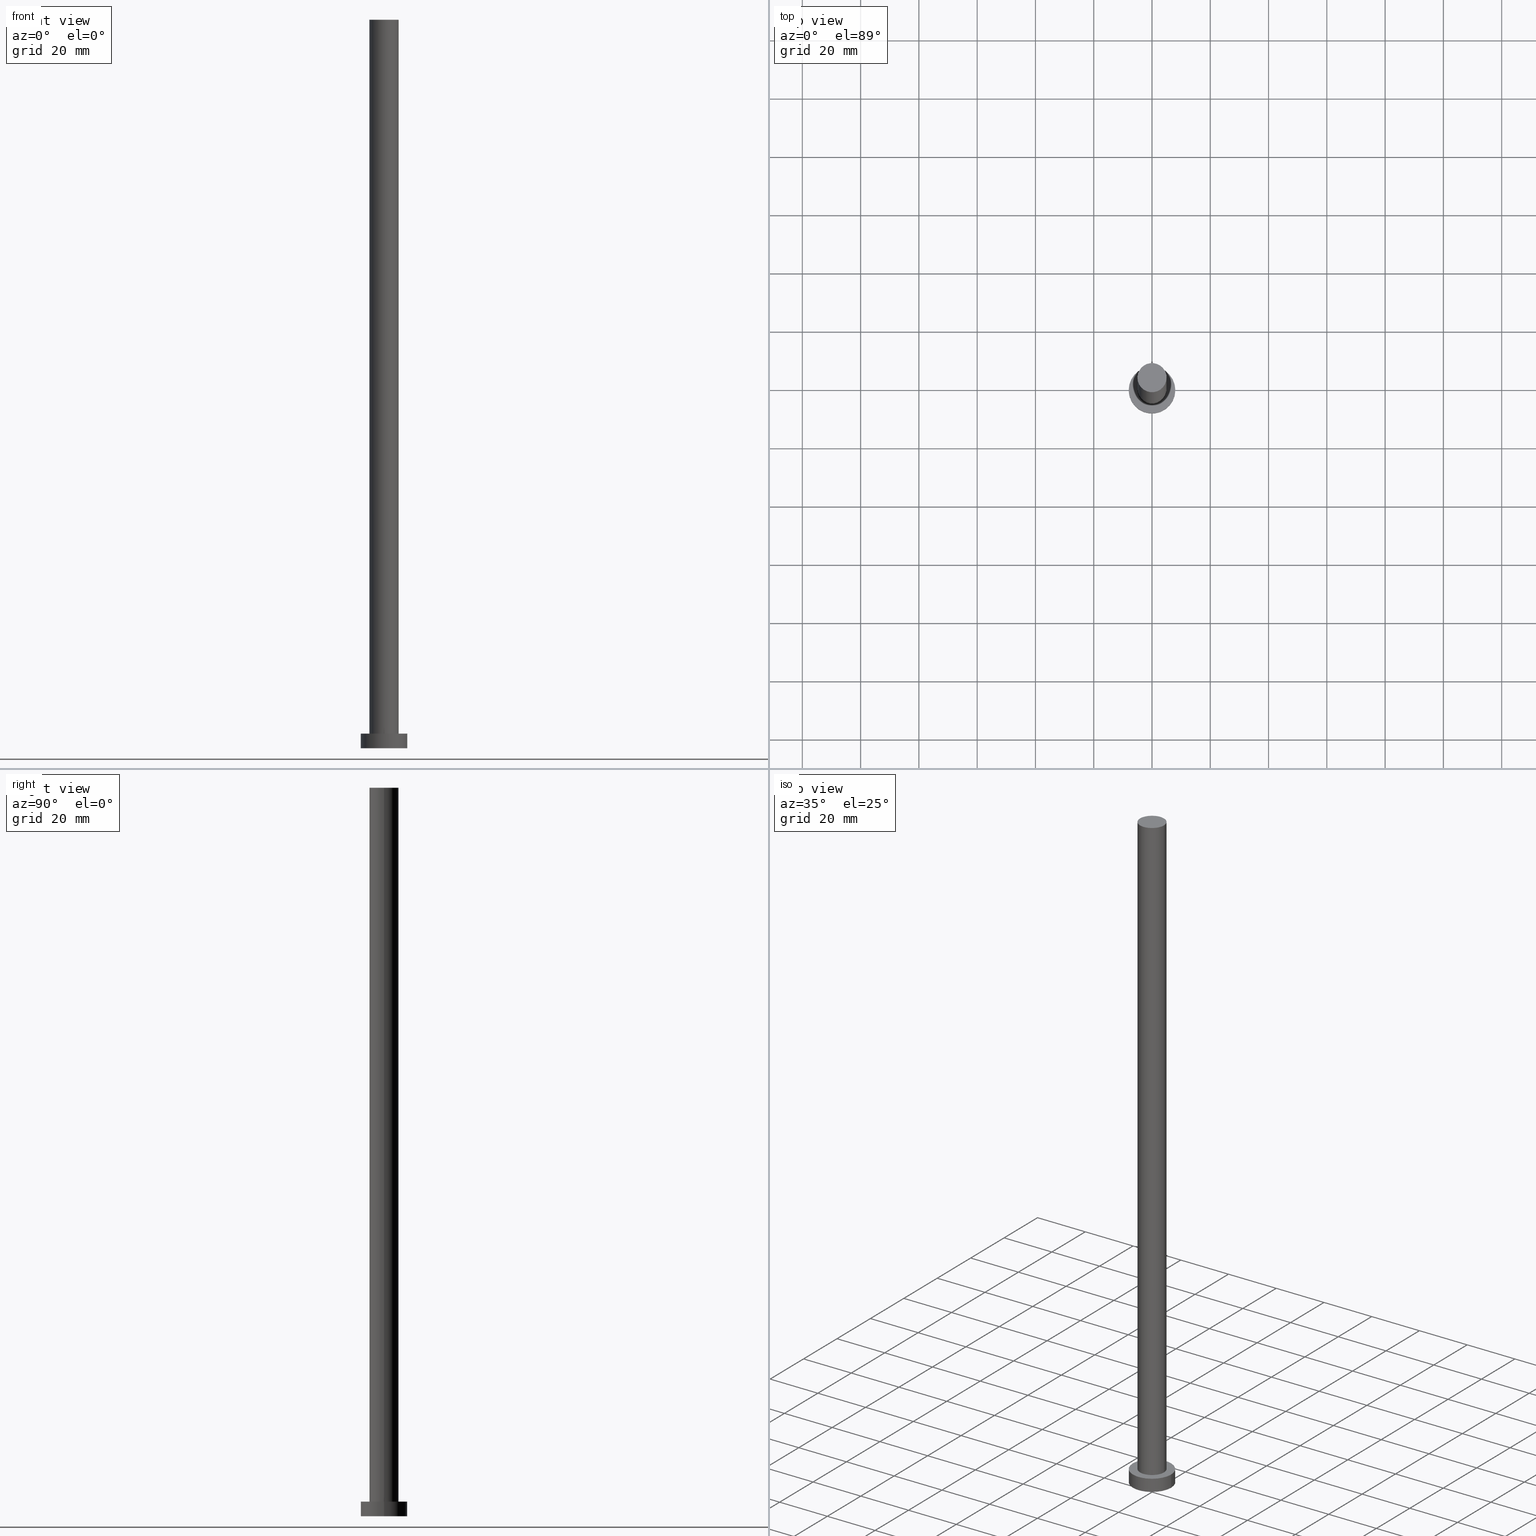
[diagram: canonical four-view strip — front | top / right | iso, engineering-drawing reading convention]
A machine part, canonical four-view strip (front | top / right | iso — engineering-drawing reading convention). The complete STEP part file that produces these views, byte-faithful:
ISO-10303-21;
HEADER;
FILE_DESCRIPTION (( 'STEP AP203' ),
    '1' );
FILE_NAME ('7c0f.STEP',
    '2023-02-12T11:00:39',
    ( '' ),
    ( '' ),
    'SwSTEP 2.0',
    'SolidWorks 2019',
    '' );
FILE_SCHEMA (( 'CONFIG_CONTROL_DESIGN' ));
ENDSEC;

DATA;
#1 = APPROVAL ( #199, 'NEUR�EN�' ) ;
#2 = CARTESIAN_POINT ( 'NONE',  ( 0.000000000000000000, 0.000000000000000000, 250.0000000000000000 ) ) ;
#3 = APPROVAL_PERSON_ORGANIZATION ( #217, #147, #54 ) ;
#4 = ORIENTED_EDGE ( 'NONE', *, *, #96, .T. ) ;
#5 = ORIENTED_EDGE ( 'NONE', *, *, #20, .F. ) ;
#6 = ADVANCED_FACE ( 'NONE', ( #210 ), #108, .T. ) ;
#7 = PLANE ( 'NONE',  #29 ) ;
#8 = DIRECTION ( 'NONE',  ( -0.000000000000000000, -0.000000000000000000, -1.000000000000000000 ) ) ;
#9 = CYLINDRICAL_SURFACE ( 'NONE', #103, 8.000000000000000000 ) ;
#10 = DIRECTION ( 'NONE',  ( -0.000000000000000000, -0.000000000000000000, -1.000000000000000000 ) ) ;
#11 = CC_DESIGN_PERSON_AND_ORGANIZATION_ASSIGNMENT ( #99, #55, ( #80 ) ) ;
#12 = CARTESIAN_POINT ( 'NONE',  ( 8.000000000000000000, 9.797174393178825657E-16, 0.000000000000000000 ) ) ;
#13 = DIRECTION ( 'NONE',  ( 0.000000000000000000, 0.000000000000000000, 1.000000000000000000 ) ) ;
#14 = CARTESIAN_POINT ( 'NONE',  ( 0.000000000000000000, 0.000000000000000000, 250.0000000000000000 ) ) ;
#15 = COORDINATED_UNIVERSAL_TIME_OFFSET ( 1, 0, .AHEAD. ) ;
#16 = LOCAL_TIME ( 12, 0, 39.00000000000000000, #137 ) ;
#17 = DATE_AND_TIME ( #237, #138 ) ;
#18 = PRODUCT_DEFINITION ( 'NEZN�M�', '', #98, #124 ) ;
#19 = PERSON_AND_ORGANIZATION ( #160, #252 ) ;
#20 = EDGE_CURVE ( 'NONE', #126, #223, #79, .T. ) ;
#21 = VERTEX_POINT ( 'NONE', #106 ) ;
#22 = EDGE_LOOP ( 'NONE', ( #224, #41, #4, #226 ) ) ;
#23 = CC_DESIGN_PERSON_AND_ORGANIZATION_ASSIGNMENT ( #74, #181, ( #98 ) ) ;
#24 = ADVANCED_BREP_SHAPE_REPRESENTATION ( '7c0f', ( #125, #220 ), #86 ) ;
#25 = EDGE_LOOP ( 'NONE', ( #168, #107, #43, #242 ) ) ;
#26 = FACE_OUTER_BOUND ( 'NONE', #25, .T. ) ;
#27 = ORIENTED_EDGE ( 'NONE', *, *, #205, .F. ) ;
#28 = CARTESIAN_POINT ( 'NONE',  ( 0.000000000000000000, 0.000000000000000000, 5.000000000000000000 ) ) ;
#29 = AXIS2_PLACEMENT_3D ( 'NONE', #183, #208, #171 ) ;
#30 = FACE_OUTER_BOUND ( 'NONE', #151, .T. ) ;
#31 = CARTESIAN_POINT ( 'NONE',  ( 0.000000000000000000, 0.000000000000000000, 0.000000000000000000 ) ) ;
#32 = VECTOR ( 'NONE', #152, 1000.000000000000000 ) ;
#33 = EDGE_CURVE ( 'NONE', #128, #126, #132, .T. ) ;
#34 = CARTESIAN_POINT ( 'NONE',  ( -5.000000000000000000, 0.000000000000000000, 5.000000000000000000 ) ) ;
#35 = CARTESIAN_POINT ( 'NONE',  ( 0.000000000000000000, 0.000000000000000000, 250.0000000000000000 ) ) ;
#36 = AXIS2_PLACEMENT_3D ( 'NONE', #35, #13, #191 ) ;
#37 = DATE_AND_TIME ( #100, #117 ) ;
#38 = APPROVAL_DATE_TIME ( #203, #147 ) ;
#39 = COORDINATED_UNIVERSAL_TIME_OFFSET ( 1, 0, .AHEAD. ) ;
#40 = CARTESIAN_POINT ( 'NONE',  ( 8.000000000000000000, 9.797174393178825657E-16, 5.000000000000000000 ) ) ;
#41 = ORIENTED_EDGE ( 'NONE', *, *, #20, .T. ) ;
#42 = CC_DESIGN_PERSON_AND_ORGANIZATION_ASSIGNMENT ( #159, #196, ( #18 ) ) ;
#43 = ORIENTED_EDGE ( 'NONE', *, *, #205, .T. ) ;
#44 = EDGE_LOOP ( 'NONE', ( #5, #241, #244, #169 ) ) ;
#45 = CIRCLE ( 'NONE', #155, 8.000000000000000000 ) ;
#46 = ORIENTED_EDGE ( 'NONE', *, *, #96, .F. ) ;
#47 = EDGE_CURVE ( 'NONE', #102, #21, #222, .T. ) ;
#48 = CYLINDRICAL_SURFACE ( 'NONE', #228, 8.000000000000000000 ) ;
#49 = CARTESIAN_POINT ( 'NONE',  ( 5.000000000000000000, 6.123233995736766282E-16, 5.000000000000000000 ) ) ;
#50 = DIRECTION ( 'NONE',  ( -0.000000000000000000, -0.000000000000000000, -1.000000000000000000 ) ) ;
#51 = CLOSED_SHELL ( 'NONE', ( #202, #184, #143, #60, #236, #65, #6 ) ) ;
#52 = CALENDAR_DATE ( 2023, 12, 2 ) ;
#53 = DIRECTION ( 'NONE',  ( 1.000000000000000000, 0.000000000000000000, 0.000000000000000000 ) ) ;
#54 = APPROVAL_ROLE ( '' ) ;
#55 = PERSON_AND_ORGANIZATION_ROLE ( 'classification_officer' ) ;
#56 = SECURITY_CLASSIFICATION_LEVEL ( 'unclassified' ) ;
#57 = CYLINDRICAL_SURFACE ( 'NONE', #105, 5.000000000000000000 ) ;
#58 = CIRCLE ( 'NONE', #212, 8.000000000000000000 ) ;
#59 = ORIENTED_EDGE ( 'NONE', *, *, #198, .F. ) ;
#60 = ADVANCED_FACE ( 'NONE', ( #104, #186 ), #7, .T. ) ;
#61 = VERTEX_POINT ( 'NONE', #221 ) ;
#62 = AXIS2_PLACEMENT_3D ( 'NONE', #28, #110, #250 ) ;
#63 = ORIENTED_EDGE ( 'NONE', *, *, #47, .T. ) ;
#64 = ORIENTED_EDGE ( 'NONE', *, *, #135, .T. ) ;
#65 = ADVANCED_FACE ( 'NONE', ( #26 ), #57, .T. ) ;
#66 = DIRECTION ( 'NONE',  ( 0.000000000000000000, 0.000000000000000000, 1.000000000000000000 ) ) ;
#67 = CARTESIAN_POINT ( 'NONE',  ( 0.000000000000000000, 0.000000000000000000, 5.000000000000000000 ) ) ;
#68 = CC_DESIGN_PERSON_AND_ORGANIZATION_ASSIGNMENT ( #75, #218, ( #98 ) ) ;
#69 = DIRECTION ( 'NONE',  ( 1.000000000000000000, 0.000000000000000000, 0.000000000000000000 ) ) ;
#70 = DIRECTION ( 'NONE',  ( -0.000000000000000000, -0.000000000000000000, -1.000000000000000000 ) ) ;
#71 =( NAMED_UNIT ( * ) SI_UNIT ( $, .STERADIAN. ) SOLID_ANGLE_UNIT ( ) );
#72 = CC_DESIGN_APPROVAL ( #1, ( #18 ) ) ;
#73 = MECHANICAL_CONTEXT ( 'NONE', #112, 'mechanical' ) ;
#74 = PERSON_AND_ORGANIZATION ( #160, #252 ) ;
#75 = PERSON_AND_ORGANIZATION ( #160, #252 ) ;
#76 = CIRCLE ( 'NONE', #36, 5.000000000000000000 ) ;
#77 = APPROVAL_ROLE ( '' ) ;
#78 = APPROVAL_DATE_TIME ( #235, #139 ) ;
#79 = LINE ( 'NONE', #40, #189 ) ;
#80 = SECURITY_CLASSIFICATION ( '', '', #56 ) ;
#81 = ORIENTED_EDGE ( 'NONE', *, *, #230, .T. ) ;
#82 = APPLICATION_CONTEXT ( 'configuration controlled 3d designs of mechanical parts and assemblies' ) ;
#83 = EDGE_CURVE ( 'NONE', #61, #223, #45, .T. ) ;
#84 = ORIENTED_EDGE ( 'NONE', *, *, #230, .F. ) ;
#85 = DIRECTION ( 'NONE',  ( 0.000000000000000000, 0.000000000000000000, 1.000000000000000000 ) ) ;
#86 =( GEOMETRIC_REPRESENTATION_CONTEXT ( 3 ) GLOBAL_UNCERTAINTY_ASSIGNED_CONTEXT ( ( #243 ) ) GLOBAL_UNIT_ASSIGNED_CONTEXT ( ( #214, #232, #71 ) ) REPRESENTATION_CONTEXT ( 'NONE', 'WORKASPACE' ) );
#87 = EDGE_CURVE ( 'NONE', #180, #122, #145, .T. ) ;
#88 = DIRECTION ( 'NONE',  ( 1.000000000000000000, 0.000000000000000000, 0.000000000000000000 ) ) ;
#89 = CARTESIAN_POINT ( 'NONE',  ( 8.000000000000000000, 9.797174393178825657E-16, 5.000000000000000000 ) ) ;
#90 = PRODUCT_DEFINITION_SHAPE ( 'NONE', 'NONE',  #18 ) ;
#91 = PLANE ( 'NONE',  #249 ) ;
#92 = DIRECTION ( 'NONE',  ( -0.000000000000000000, -0.000000000000000000, -1.000000000000000000 ) ) ;
#93 = CC_DESIGN_DATE_AND_TIME_ASSIGNMENT ( #254, #97, ( #18 ) ) ;
#94 = DIRECTION ( 'NONE',  ( -0.000000000000000000, -0.000000000000000000, -1.000000000000000000 ) ) ;
#95 = CARTESIAN_POINT ( 'NONE',  ( -5.000000000000000000, 0.000000000000000000, 250.0000000000000000 ) ) ;
#96 = EDGE_CURVE ( 'NONE', #223, #61, #58, .T. ) ;
#97 = DATE_TIME_ROLE ( 'creation_date' ) ;
#98 = PRODUCT_DEFINITION_FORMATION_WITH_SPECIFIED_SOURCE ( 'LIBOVOLN�', '', #111, .NOT_KNOWN. ) ;
#99 = PERSON_AND_ORGANIZATION ( #160, #252 ) ;
#100 = CALENDAR_DATE ( 2023, 12, 2 ) ;
#101 = VECTOR ( 'NONE', #10, 1000.000000000000000 ) ;
#102 = VERTEX_POINT ( 'NONE', #95 ) ;
#103 = AXIS2_PLACEMENT_3D ( 'NONE', #211, #94, #174 ) ;
#104 = FACE_BOUND ( 'NONE', #164, .T. ) ;
#105 = AXIS2_PLACEMENT_3D ( 'NONE', #187, #8, #114 ) ;
#106 = CARTESIAN_POINT ( 'NONE',  ( 5.000000000000000000, 6.123233995736766282E-16, 250.0000000000000000 ) ) ;
#107 = ORIENTED_EDGE ( 'NONE', *, *, #47, .F. ) ;
#108 = PLANE ( 'NONE',  #120 ) ;
#109 = AXIS2_PLACEMENT_3D ( 'NONE', #182, #240, #88 ) ;
#110 = DIRECTION ( 'NONE',  ( 0.000000000000000000, 0.000000000000000000, 1.000000000000000000 ) ) ;
#111 = PRODUCT ( '7c0f', '7c0f', '', ( #73 ) ) ;
#112 = APPLICATION_CONTEXT ( 'configuration controlled 3d designs of mechanical parts and assemblies' ) ;
#113 = DIRECTION ( 'NONE',  ( 0.000000000000000000, 0.000000000000000000, 1.000000000000000000 ) ) ;
#114 = DIRECTION ( 'NONE',  ( -1.000000000000000000, 0.000000000000000000, 0.000000000000000000 ) ) ;
#115 = CARTESIAN_POINT ( 'NONE',  ( 0.000000000000000000, 0.000000000000000000, 0.000000000000000000 ) ) ;
#116 = APPLICATION_PROTOCOL_DEFINITION ( 'international standard', 'config_control_design', 1994, #112 ) ;
#117 = LOCAL_TIME ( 12, 0, 39.00000000000000000, #142 ) ;
#118 = DIRECTION ( 'NONE',  ( 0.000000000000000000, 0.000000000000000000, 1.000000000000000000 ) ) ;
#119 = EDGE_CURVE ( 'NONE', #128, #61, #248, .T. ) ;
#120 = AXIS2_PLACEMENT_3D ( 'NONE', #2, #85, #246 ) ;
#121 = SHAPE_DEFINITION_REPRESENTATION ( #90, #24 ) ;
#122 = VERTEX_POINT ( 'NONE', #49 ) ;
#123 = ORIENTED_EDGE ( 'NONE', *, *, #33, .T. ) ;
#124 = DESIGN_CONTEXT ( 'detailed design', #82, 'design' ) ;
#125 = MANIFOLD_SOLID_BREP ( 'P�idat vysunut�m3', #51 ) ;
#126 = VERTEX_POINT ( 'NONE', #89 ) ;
#127 = DIRECTION ( 'NONE',  ( 0.000000000000000000, 0.000000000000000000, 1.000000000000000000 ) ) ;
#128 = VERTEX_POINT ( 'NONE', #215 ) ;
#129 = APPROVAL_PERSON_ORGANIZATION ( #179, #1, #77 ) ;
#130 = CC_DESIGN_SECURITY_CLASSIFICATION ( #80, ( #98 ) ) ;
#131 = DIRECTION ( 'NONE',  ( 0.000000000000000000, 0.000000000000000000, 1.000000000000000000 ) ) ;
#132 = CIRCLE ( 'NONE', #165, 8.000000000000000000 ) ;
#133 = DIRECTION ( 'NONE',  ( -1.000000000000000000, 0.000000000000000000, 0.000000000000000000 ) ) ;
#134 = DIRECTION ( 'NONE',  ( 1.000000000000000000, 0.000000000000000000, -0.000000000000000000 ) ) ;
#135 = EDGE_CURVE ( 'NONE', #126, #128, #141, .T. ) ;
#136 = CYLINDRICAL_SURFACE ( 'NONE', #149, 5.000000000000000000 ) ;
#137 = COORDINATED_UNIVERSAL_TIME_OFFSET ( 1, 0, .AHEAD. ) ;
#138 = LOCAL_TIME ( 12, 0, 39.00000000000000000, #39 ) ;
#139 = APPROVAL ( #253, 'NEUR�EN�' ) ;
#140 = COORDINATED_UNIVERSAL_TIME_OFFSET ( 1, 0, .AHEAD. ) ;
#141 = CIRCLE ( 'NONE', #194, 8.000000000000000000 ) ;
#142 = COORDINATED_UNIVERSAL_TIME_OFFSET ( 1, 0, .AHEAD. ) ;
#143 = ADVANCED_FACE ( 'NONE', ( #193 ), #9, .T. ) ;
#144 = EDGE_LOOP ( 'NONE', ( #123, #64 ) ) ;
#145 = CIRCLE ( 'NONE', #177, 5.000000000000000000 ) ;
#146 = ORIENTED_EDGE ( 'NONE', *, *, #83, .F. ) ;
#147 = APPROVAL ( #166, 'NEUR�EN�' ) ;
#148 = EDGE_LOOP ( 'NONE', ( #146, #46 ) ) ;
#149 = AXIS2_PLACEMENT_3D ( 'NONE', #14, #70, #172 ) ;
#150 = EDGE_LOOP ( 'NONE', ( #63, #170 ) ) ;
#151 = EDGE_LOOP ( 'NONE', ( #59, #207, #81, #27 ) ) ;
#152 = DIRECTION ( 'NONE',  ( -0.000000000000000000, -0.000000000000000000, -1.000000000000000000 ) ) ;
#153 = LOCAL_TIME ( 12, 0, 39.00000000000000000, #140 ) ;
#154 = DIRECTION ( 'NONE',  ( 0.000000000000000000, 0.000000000000000000, 1.000000000000000000 ) ) ;
#155 = AXIS2_PLACEMENT_3D ( 'NONE', #175, #131, #213 ) ;
#156 = CARTESIAN_POINT ( 'NONE',  ( 0.000000000000000000, 0.000000000000000000, 5.000000000000000000 ) ) ;
#157 = DIRECTION ( 'NONE',  ( 0.000000000000000000, 0.000000000000000000, 1.000000000000000000 ) ) ;
#158 = CARTESIAN_POINT ( 'NONE',  ( 0.000000000000000000, 0.000000000000000000, 5.000000000000000000 ) ) ;
#159 = PERSON_AND_ORGANIZATION ( #160, #252 ) ;
#160 = PERSON ( 'NEUR�EN�', 'NEUR�EN�', 'NEUR�EN�', ('NEUR�EN�'), ('NEUR�EN�'), ('NEUR�EN�') ) ;
#161 = PERSON_AND_ORGANIZATION_ROLE ( 'design_owner' ) ;
#162 = CC_DESIGN_PERSON_AND_ORGANIZATION_ASSIGNMENT ( #201, #161, ( #111 ) ) ;
#163 = CALENDAR_DATE ( 2023, 12, 2 ) ;
#164 = EDGE_LOOP ( 'NONE', ( #204, #84 ) ) ;
#165 = AXIS2_PLACEMENT_3D ( 'NONE', #225, #127, #206 ) ;
#166 = APPROVAL_STATUS ( 'not_yet_approved' ) ;
#167 = DIRECTION ( 'NONE',  ( -0.000000000000000000, -0.000000000000000000, -1.000000000000000000 ) ) ;
#168 = ORIENTED_EDGE ( 'NONE', *, *, #209, .F. ) ;
#169 = ORIENTED_EDGE ( 'NONE', *, *, #83, .T. ) ;
#170 = ORIENTED_EDGE ( 'NONE', *, *, #198, .T. ) ;
#171 = DIRECTION ( 'NONE',  ( 1.000000000000000000, 0.000000000000000000, -0.000000000000000000 ) ) ;
#172 = DIRECTION ( 'NONE',  ( -1.000000000000000000, 0.000000000000000000, 0.000000000000000000 ) ) ;
#173 = CARTESIAN_POINT ( 'NONE',  ( -5.000000000000000000, 0.000000000000000000, 250.0000000000000000 ) ) ;
#174 = DIRECTION ( 'NONE',  ( -1.000000000000000000, 0.000000000000000000, 0.000000000000000000 ) ) ;
#175 = CARTESIAN_POINT ( 'NONE',  ( 0.000000000000000000, 0.000000000000000000, 0.000000000000000000 ) ) ;
#176 = LOCAL_TIME ( 12, 0, 39.00000000000000000, #15 ) ;
#177 = AXIS2_PLACEMENT_3D ( 'NONE', #156, #66, #69 ) ;
#178 = CIRCLE ( 'NONE', #62, 5.000000000000000000 ) ;
#179 = PERSON_AND_ORGANIZATION ( #160, #252 ) ;
#180 = VERTEX_POINT ( 'NONE', #34 ) ;
#181 = PERSON_AND_ORGANIZATION_ROLE ( 'design_supplier' ) ;
#182 = CARTESIAN_POINT ( 'NONE',  ( 0.000000000000000000, 0.000000000000000000, 250.0000000000000000 ) ) ;
#183 = CARTESIAN_POINT ( 'NONE',  ( 0.000000000000000000, 0.000000000000000000, 5.000000000000000000 ) ) ;
#184 = ADVANCED_FACE ( 'NONE', ( #190 ), #48, .T. ) ;
#185 = VECTOR ( 'NONE', #92, 1000.000000000000000 ) ;
#186 = FACE_OUTER_BOUND ( 'NONE', #144, .T. ) ;
#187 = CARTESIAN_POINT ( 'NONE',  ( 0.000000000000000000, 0.000000000000000000, 250.0000000000000000 ) ) ;
#188 = CARTESIAN_POINT ( 'NONE',  ( -8.000000000000000000, 0.000000000000000000, 5.000000000000000000 ) ) ;
#189 = VECTOR ( 'NONE', #167, 1000.000000000000000 ) ;
#190 = FACE_OUTER_BOUND ( 'NONE', #22, .T. ) ;
#191 = DIRECTION ( 'NONE',  ( 1.000000000000000000, 0.000000000000000000, 0.000000000000000000 ) ) ;
#192 = CC_DESIGN_DATE_AND_TIME_ASSIGNMENT ( #37, #200, ( #80 ) ) ;
#193 = FACE_OUTER_BOUND ( 'NONE', #44, .T. ) ;
#194 = AXIS2_PLACEMENT_3D ( 'NONE', #158, #154, #195 ) ;
#195 = DIRECTION ( 'NONE',  ( 1.000000000000000000, 0.000000000000000000, 0.000000000000000000 ) ) ;
#196 = PERSON_AND_ORGANIZATION_ROLE ( 'creator' ) ;
#197 = CC_DESIGN_APPROVAL ( #139, ( #98 ) ) ;
#198 = EDGE_CURVE ( 'NONE', #21, #102, #76, .T. ) ;
#199 = APPROVAL_STATUS ( 'not_yet_approved' ) ;
#200 = DATE_TIME_ROLE ( 'classification_date' ) ;
#201 = PERSON_AND_ORGANIZATION ( #160, #252 ) ;
#202 = ADVANCED_FACE ( 'NONE', ( #30 ), #136, .T. ) ;
#203 = DATE_AND_TIME ( #219, #153 ) ;
#204 = ORIENTED_EDGE ( 'NONE', *, *, #87, .F. ) ;
#205 = EDGE_CURVE ( 'NONE', #102, #180, #247, .T. ) ;
#206 = DIRECTION ( 'NONE',  ( 1.000000000000000000, 0.000000000000000000, 0.000000000000000000 ) ) ;
#207 = ORIENTED_EDGE ( 'NONE', *, *, #209, .T. ) ;
#208 = DIRECTION ( 'NONE',  ( 0.000000000000000000, 0.000000000000000000, 1.000000000000000000 ) ) ;
#209 = EDGE_CURVE ( 'NONE', #21, #122, #227, .T. ) ;
#210 = FACE_OUTER_BOUND ( 'NONE', #150, .T. ) ;
#211 = CARTESIAN_POINT ( 'NONE',  ( 0.000000000000000000, 0.000000000000000000, 5.000000000000000000 ) ) ;
#212 = AXIS2_PLACEMENT_3D ( 'NONE', #31, #113, #231 ) ;
#213 = DIRECTION ( 'NONE',  ( 1.000000000000000000, 0.000000000000000000, 0.000000000000000000 ) ) ;
#214 =( LENGTH_UNIT ( ) NAMED_UNIT ( * ) SI_UNIT ( .MILLI., .METRE. ) );
#215 = CARTESIAN_POINT ( 'NONE',  ( -8.000000000000000000, 0.000000000000000000, 5.000000000000000000 ) ) ;
#216 = PRODUCT_RELATED_PRODUCT_CATEGORY ( 'detail', '', ( #111 ) ) ;
#217 = PERSON_AND_ORGANIZATION ( #160, #252 ) ;
#218 = PERSON_AND_ORGANIZATION_ROLE ( 'creator' ) ;
#219 = CALENDAR_DATE ( 2023, 12, 2 ) ;
#220 = AXIS2_PLACEMENT_3D ( 'NONE', #115, #118, #53 ) ;
#221 = CARTESIAN_POINT ( 'NONE',  ( -8.000000000000000000, 0.000000000000000000, 0.000000000000000000 ) ) ;
#222 = CIRCLE ( 'NONE', #109, 5.000000000000000000 ) ;
#223 = VERTEX_POINT ( 'NONE', #12 ) ;
#224 = ORIENTED_EDGE ( 'NONE', *, *, #135, .F. ) ;
#225 = CARTESIAN_POINT ( 'NONE',  ( 0.000000000000000000, 0.000000000000000000, 5.000000000000000000 ) ) ;
#226 = ORIENTED_EDGE ( 'NONE', *, *, #119, .F. ) ;
#227 = LINE ( 'NONE', #251, #101 ) ;
#228 = AXIS2_PLACEMENT_3D ( 'NONE', #67, #50, #133 ) ;
#229 = CARTESIAN_POINT ( 'NONE',  ( 0.000000000000000000, 0.000000000000000000, 0.000000000000000000 ) ) ;
#230 = EDGE_CURVE ( 'NONE', #122, #180, #178, .T. ) ;
#231 = DIRECTION ( 'NONE',  ( 1.000000000000000000, 0.000000000000000000, 0.000000000000000000 ) ) ;
#232 =( NAMED_UNIT ( * ) PLANE_ANGLE_UNIT ( ) SI_UNIT ( $, .RADIAN. ) );
#233 = FACE_OUTER_BOUND ( 'NONE', #148, .T. ) ;
#234 = APPROVAL_DATE_TIME ( #17, #1 ) ;
#235 = DATE_AND_TIME ( #52, #16 ) ;
#236 = ADVANCED_FACE ( 'NONE', ( #233 ), #91, .F. ) ;
#237 = CALENDAR_DATE ( 2023, 12, 2 ) ;
#238 = APPROVAL_ROLE ( '' ) ;
#239 = APPROVAL_PERSON_ORGANIZATION ( #19, #139, #238 ) ;
#240 = DIRECTION ( 'NONE',  ( 0.000000000000000000, 0.000000000000000000, 1.000000000000000000 ) ) ;
#241 = ORIENTED_EDGE ( 'NONE', *, *, #33, .F. ) ;
#242 = ORIENTED_EDGE ( 'NONE', *, *, #87, .T. ) ;
#243 = UNCERTAINTY_MEASURE_WITH_UNIT (LENGTH_MEASURE( 1.000000000000000082E-05 ), #214, 'distance_accuracy_value', 'NONE');
#244 = ORIENTED_EDGE ( 'NONE', *, *, #119, .T. ) ;
#245 = CC_DESIGN_APPROVAL ( #147, ( #80 ) ) ;
#246 = DIRECTION ( 'NONE',  ( 1.000000000000000000, 0.000000000000000000, -0.000000000000000000 ) ) ;
#247 = LINE ( 'NONE', #173, #32 ) ;
#248 = LINE ( 'NONE', #188, #185 ) ;
#249 = AXIS2_PLACEMENT_3D ( 'NONE', #229, #157, #134 ) ;
#250 = DIRECTION ( 'NONE',  ( 1.000000000000000000, 0.000000000000000000, 0.000000000000000000 ) ) ;
#251 = CARTESIAN_POINT ( 'NONE',  ( 5.000000000000000000, 6.123233995736766282E-16, 250.0000000000000000 ) ) ;
#252 = ORGANIZATION ( 'NEUR�EN�', 'NEUR�EN�', '' ) ;
#253 = APPROVAL_STATUS ( 'not_yet_approved' ) ;
#254 = DATE_AND_TIME ( #163, #176 ) ;
#255 = APPLICATION_PROTOCOL_DEFINITION ( 'international standard', 'config_control_design', 1994, #82 ) ;
ENDSEC;
END-ISO-10303-21;
